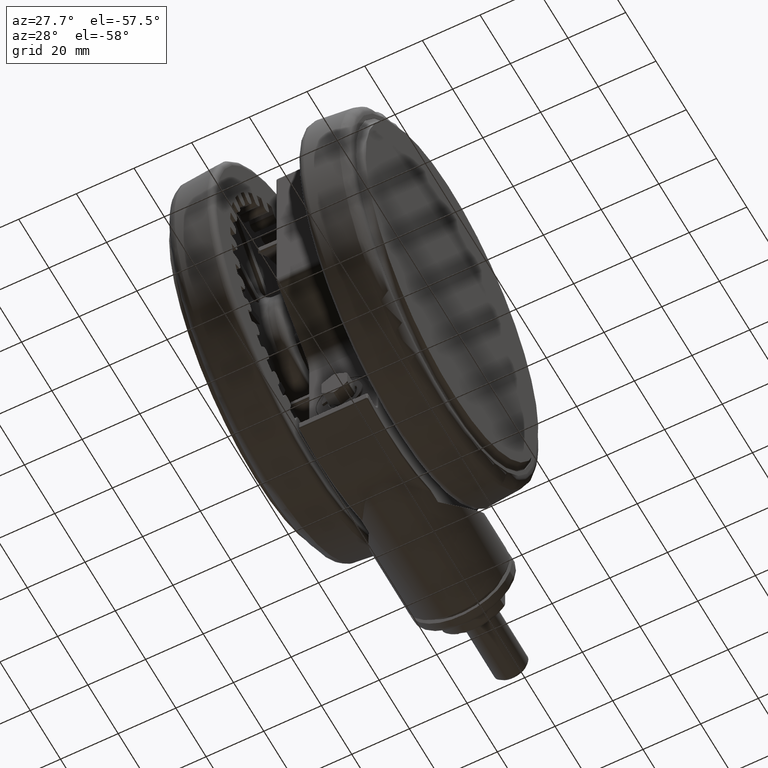
[diagram: clean part render]
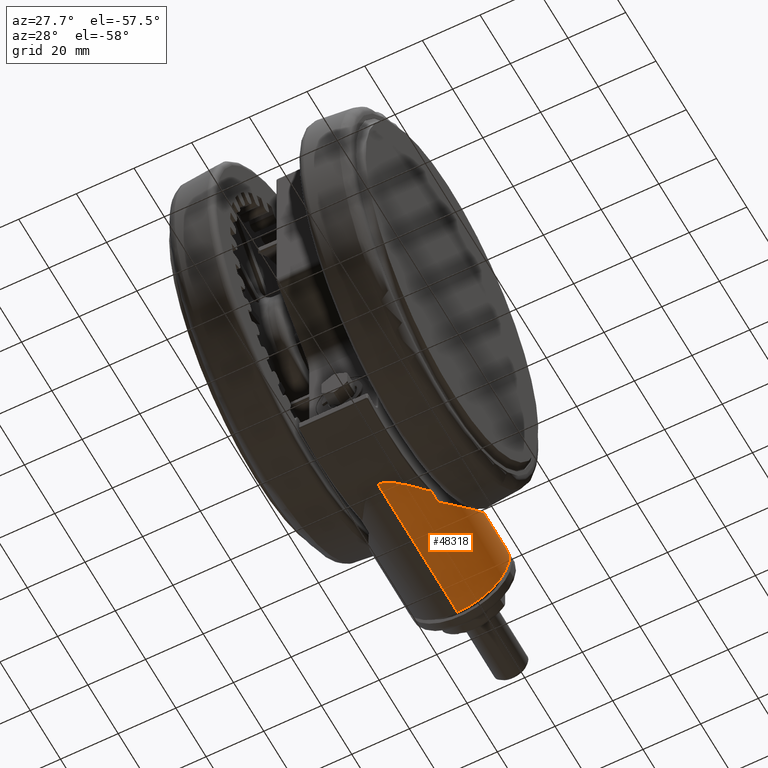
[diagram: same view with one face highlighted and labeled with its STEP entity id]
A machine part, auxiliary view. The second image highlights one B-rep face of the part: STEP entity #48318.
In plain terms, the highlighted cylindrical surface (partial cylindrical patch) has radius 18 mm, axis along (0, -1, 0).
Its self-contained STEP definition (entity closure, byte-faithful):
#78 = DIRECTION ( 'NONE',  ( -0.05055745222233949700, -0.9987211542892169300, 0.0000000000000000000 ) ) ;
#140 = CARTESIAN_POINT ( 'NONE',  ( 44.14669948608721500, 50.40088120817844000, -16.43206322040248000 ) ) ;
#389 = CARTESIAN_POINT ( 'NONE',  ( 58.20468124980212800, 33.19386720055675300, -20.20223399500327900 ) ) ;
#712 = B_SPLINE_CURVE_WITH_KNOTS ( 'NONE', 3,
 ( #41897, #7928, #58980, #25003, #64667, #30708, #70390, #36444, #2520, #42129, #8186, #47855, #13873, #53536 ),
 .UNSPECIFIED., .F., .F.,
 ( 4, 2, 2, 2, 2, 2, 4 ),
 ( 0.0000000000000000000, 0.0003000058049721905700, 0.0004500087074582788100, 0.0006000116099443670500, 0.0007500145124304551800, 0.0009000174149165435300, 0.001200023219888709600 ),
 .UNSPECIFIED. ) ;
#2285 = CIRCLE ( 'NONE', #30308, 17.99999999999999300 ) ;
#2520 = CARTESIAN_POINT ( 'NONE',  ( 59.93774761731221200, 24.91412802615935000, -22.31011401550836800 ) ) ;
#4741 = CARTESIAN_POINT ( 'NONE',  ( 30.51502983712470000, 66.07683388416536700, -31.89133214798207300 ) ) ;
#4989 = CARTESIAN_POINT ( 'NONE',  ( 32.45790099931790000, 61.25055330990330300, -25.25708756687142700 ) ) ;
#5000 = CARTESIAN_POINT ( 'NONE',  ( 34.88047826945315700, 67.32262713935560300, -22.27142857142859400 ) ) ;
#5229 = CARTESIAN_POINT ( 'NONE',  ( 34.08885830141999000, 56.35140521876679300, -22.54204867419069900 ) ) ;
#5414 = CARTESIAN_POINT ( 'NONE',  ( 62.73348931903807800, 17.02483586829037800, -27.60073806119338600 ) ) ;
#5577 = CARTESIAN_POINT ( 'NONE',  ( 36.59040971736735800, 56.13018517806715800, -20.06248844090831100 ) ) ;
#5819 = CARTESIAN_POINT ( 'NONE',  ( 45.09571121983064000, 49.55357112077411600, -16.26687793784571000 ) ) ;
#6066 = CARTESIAN_POINT ( 'NONE',  ( 59.31736890908811000, 31.16152881902164000, -21.29889750712607500 ) ) ;
#6380 = DIRECTION ( 'NONE',  ( -0.05055745222233949700, -0.9987211542892169300, 0.0000000000000000000 ) ) ;
#7928 = CARTESIAN_POINT ( 'NONE',  ( 59.72929033548905400, 24.45728313798082700, -22.10000000000000900 ) ) ;
#8186 = CARTESIAN_POINT ( 'NONE',  ( 60.02456538263079000, 24.85083112791188500, -22.41467223494362700 ) ) ;
#10133 = ORIENTED_EDGE ( 'NONE', *, *, #67243, .T. ) ;
#10167 = B_SPLINE_CURVE_WITH_KNOTS ( 'NONE', 3,
 ( #39508, #67772, #16714, #5577, #45211, #11281, #50966, #16973, #56647, #22656, #62302, #28321, #68011, #34044, #140, #39762, #5819, #45470, #11520, #51192, #17212, #56891, #22901, #62544, #28582, #68254, #34287, #389, #40004, #6066, #45705, #11771 ),
 .UNSPECIFIED., .F., .F.,
 ( 4, 2, 2, 2, 2, 2, 2, 2, 2, 2, 2, 2, 2, 2, 2, 4 ),
 ( -0.0002386625665848559900, 0.002306546216419894600, 0.004851754999424645300, 0.006124359390927029700, 0.007396963782429415900, 0.009942172565434163900, 0.01248738134843891200, 0.01375998573994128600, 0.01503259013144365800, 0.02012300769745314200, 0.02266821648045789400, 0.02521342526346264200, 0.03030384282947212700, 0.03539426039548161700, 0.03793946917848636100, 0.04048467796149110600 ),
 .UNSPECIFIED. ) ;
#10187 = ORIENTED_EDGE ( 'NONE', *, *, #12396, .T. ) ;
#10298 = VECTOR ( 'NONE', #15710, 1000.000000000000100 ) ;
#10431 = CARTESIAN_POINT ( 'NONE',  ( 30.61250370918296700, 65.84271139054567400, -31.11424504967487100 ) ) ;
#10645 = FACE_OUTER_BOUND ( 'NONE', #57889, .T. ) ;
#10669 = CARTESIAN_POINT ( 'NONE',  ( 32.79271872454821600, 60.34144584278084300, -24.61455989449467200 ) ) ;
#10860 = CARTESIAN_POINT ( 'NONE',  ( 63.72835195577810900, 12.79441897862009400, -33.73296376204380900 ) ) ;
#11105 = CARTESIAN_POINT ( 'NONE',  ( 61.90592499908910200, 19.85430267694305700, -25.47374654593914300 ) ) ;
#11176 = LINE ( 'NONE', #42779, #54630 ) ;
#11281 = CARTESIAN_POINT ( 'NONE',  ( 38.09567291457500500, 55.11674801192608400, -18.95786812325592400 ) ) ;
#11431 = ORIENTED_EDGE ( 'NONE', *, *, #34251, .T. ) ;
#11520 = CARTESIAN_POINT ( 'NONE',  ( 47.85484969581113300, 46.92319790031873300, -16.06348650702902200 ) ) ;
#11695 = EDGE_CURVE ( 'NONE', #39783, #25799, #17771, .T. ) ;
#11771 = CARTESIAN_POINT ( 'NONE',  ( 60.00051325005273400, 29.81507017818748700, -22.10000000000001200 ) ) ;
#11814 = AXIS2_PLACEMENT_3D ( 'NONE', #24170, #18454, #63827 ) ;
#11950 = CARTESIAN_POINT ( 'NONE',  ( 30.42865664303911200, 67.04734785880820900, -34.10000000000002300 ) ) ;
#12396 = EDGE_CURVE ( 'NONE', #54913, #27442, #11176, .T. ) ;
#13709 = ORIENTED_EDGE ( 'NONE', *, *, #70308, .T. ) ;
#13873 = CARTESIAN_POINT ( 'NONE',  ( 60.13402875898784600, 24.67603114804268600, -22.55446851132577300 ) ) ;
#15710 = DIRECTION ( 'NONE',  ( -0.05055745222233949700, -0.9987211542892169300, 0.0000000000000000000 ) ) ;
#16116 = CARTESIAN_POINT ( 'NONE',  ( 30.77614859069719700, 65.45021851770759700, -30.19591483090587400 ) ) ;
#16354 = CARTESIAN_POINT ( 'NONE',  ( 33.04944884259440100, 59.61322262424958800, -24.16006867629340200 ) ) ;
#16547 = CARTESIAN_POINT ( 'NONE',  ( 63.68440747458662100, 13.01168646963638200, -32.65005110094053700 ) ) ;
#16714 = CARTESIAN_POINT ( 'NONE',  ( 35.45193216510153900, 56.85610149465018300, -21.09378444231233400 ) ) ;
#16793 = CARTESIAN_POINT ( 'NONE',  ( 60.65898094609669000, 23.39174740267126400, -23.26394934674032200 ) ) ;
#16973 = CARTESIAN_POINT ( 'NONE',  ( 39.03246791779054800, 54.45745312618885900, -18.37687606074000300 ) ) ;
#17212 = CARTESIAN_POINT ( 'NONE',  ( 50.15498108677556400, 44.43196165805209600, -16.31612010301205700 ) ) ;
#17497 = ORIENTED_EDGE ( 'NONE', *, *, #52545, .T. ) ;
#17771 = B_SPLINE_CURVE_WITH_KNOTS ( 'NONE', 3,
 ( #49858, #32693, #27234, #66912, #32939, #72627, #38658, #4741, #44369, #10431, #50106, #16116, #55798, #21802, #61453, #27478, #67161, #33183, #72851, #38912, #4989, #44617, #10669, #50357, #16354, #56039, #22050, #61693, #27736, #67411, #33423, #73096, #39156, #5229, #44854 ),
 .UNSPECIFIED., .F., .F.,
 ( 4, 2, 1, 2, 2, 1, 2, 2, 1, 2, 2, 2, 2, 2, 2, 2, 1, 1, 2, 4 ),
 ( 0.4997011025787161400, 0.5149259359215335700, 0.5301507692643509000, 0.5606004359499849900, 0.5758252692928023100, 0.5910501026356195200, 0.6214997693212548400, 0.6367246026640726000, 0.6519494360068902600, 0.6823991026925249100, 0.7432984360637934200, 0.8041977694350619400, 0.8346474361206963600, 0.8650971028063310100, 0.8727095194777400000, 0.8765157278134445600, 0.8803219361491492200, 0.8955467694919681000, 0.9259964361776056300, 0.9868957695488810300 ),
 .UNSPECIFIED. ) ;
#18454 = DIRECTION ( 'NONE',  ( -0.05055745222233949700, -0.9987211542892170400, 0.0000000000000000000 ) ) ;
#18857 = VERTEX_POINT ( 'NONE', #46875 ) ;
#19224 = EDGE_CURVE ( 'NONE', #58566, #18857, #68806, .T. ) ;
#20498 = LINE ( 'NONE', #5000, #62174 ) ;
#21802 = CARTESIAN_POINT ( 'NONE',  ( 30.86747597106784000, 65.23062276913641700, -29.76120331054965700 ) ) ;
#22050 = CARTESIAN_POINT ( 'NONE',  ( 33.12118085617735400, 59.40530525637161200, -24.03727319394216600 ) ) ;
#22239 = CARTESIAN_POINT ( 'NONE',  ( 63.59521371804634500, 13.44146514395031900, -31.64063744673932600 ) ) ;
#22656 = CARTESIAN_POINT ( 'NONE',  ( 40.30484175776911100, 53.52702744680085100, -17.69880685321983500 ) ) ;
#22720 = ORIENTED_EDGE ( 'NONE', *, *, #67183, .T. ) ;
#22901 = CARTESIAN_POINT ( 'NONE',  ( 51.80270546942504200, 42.49909936042605100, -16.68494045952805700 ) ) ;
#23929 = CYLINDRICAL_SURFACE ( 'NONE', #11814, 18.00000000000000000 ) ;
#24170 = CARTESIAN_POINT ( 'NONE',  ( 48.43091614635618900, 66.63667429595071200, -34.10000000000001600 ) ) ;
#25003 = CARTESIAN_POINT ( 'NONE',  ( 59.76816209047621700, 24.70268384109408200, -22.12959349303896800 ) ) ;
#25799 = VERTEX_POINT ( 'NONE', #26999 ) ;
#26999 = CARTESIAN_POINT ( 'NONE',  ( 34.28797555004973700, 55.61847226194731800, -22.27143769148011300 ) ) ;
#27077 = CARTESIAN_POINT ( 'NONE',  ( 66.40789692356209200, 65.72664015594860100, -34.10000000000001600 ) ) ;
#27234 = CARTESIAN_POINT ( 'NONE',  ( 30.39624465938997100, 66.36721340055277100, -33.78829076249908800 ) ) ;
#27442 = VERTEX_POINT ( 'NONE', #56308 ) ;
#27478 = CARTESIAN_POINT ( 'NONE',  ( 31.07686011391467300, 64.72522153362402300, -28.90054944847633700 ) ) ;
#27736 = CARTESIAN_POINT ( 'NONE',  ( 33.16230185567109600, 59.28516581692573300, -23.96771043783830300 ) ) ;
#27918 = CARTESIAN_POINT ( 'NONE',  ( 63.46999137052322500, 14.02148358809706800, -30.70626517168164700 ) ) ;
#28233 = B_SPLINE_CURVE_WITH_KNOTS ( 'NONE', 3,
 ( #44806, #10860, #50547, #16547, #56235, #22239, #61878, #27918, #67614, #33623, #73290, #39342, #5414, #45041, #11105, #50799, #16793, #56472 ),
 .UNSPECIFIED., .F., .F.,
 ( 4, 2, 2, 2, 2, 2, 2, 2, 4 ),
 ( 0.01856654758789083600, 0.01965893162401120500, 0.02075131566013157700, 0.02184369969625194600, 0.02293608373237231900, 0.02512085180461304600, 0.02730561987685377300, 0.03167515602133523500, 0.03604469216581670400 ),
 .UNSPECIFIED. ) ;
#28321 = CARTESIAN_POINT ( 'NONE',  ( 42.22426262899707400, 52.02670626982271800, -16.93353194370890700 ) ) ;
#28582 = CARTESIAN_POINT ( 'NONE',  ( 54.33635481753875500, 39.23214764587353200, -17.60257670483941800 ) ) ;
#29825 = LINE ( 'NONE', #33738, #73284 ) ;
#30308 = AXIS2_PLACEMENT_3D ( 'NONE', #31424, #71119, #37163 ) ;
#30708 = CARTESIAN_POINT ( 'NONE',  ( 59.81640498803748300, 24.83722714176157000, -22.17620667785482500 ) ) ;
#31424 = CARTESIAN_POINT ( 'NONE',  ( 48.40563742024502100, 66.13731371880609800, -34.10000000000001600 ) ) ;
#32693 = CARTESIAN_POINT ( 'NONE',  ( 30.39445124485613500, 66.37164816955024100, -33.94649778834990200 ) ) ;
#32939 = CARTESIAN_POINT ( 'NONE',  ( 30.41991885408612000, 66.30831619192083800, -33.00231471533453500 ) ) ;
#32952 = DIRECTION ( 'NONE',  ( 0.05055745222233949700, 0.9987211542892169300, -0.0000000000000000000 ) ) ;
#33183 = CARTESIAN_POINT ( 'NONE',  ( 31.50107299475343600, 63.68876888769367600, -27.50687675431564500 ) ) ;
#33423 = CARTESIAN_POINT ( 'NONE',  ( 33.40437314908980000, 58.56714683440936400, -23.56724930811662200 ) ) ;
#33623 = CARTESIAN_POINT ( 'NONE',  ( 63.26584950446792300, 14.92148890183957000, -29.57144694429217000 ) ) ;
#33738 = CARTESIAN_POINT ( 'NONE',  ( 30.45393536915028300, 67.54670843595282300, -34.10000000000001600 ) ) ;
#34044 = CARTESIAN_POINT ( 'NONE',  ( 43.82597921565566400, 50.67998444100360400, -16.50068771614700600 ) ) ;
#34251 = EDGE_CURVE ( 'NONE', #43433, #39783, #29825, .T. ) ;
#34287 = CARTESIAN_POINT ( 'NONE',  ( 57.01264417264387400, 35.22824663420757900, -19.20065556778598600 ) ) ;
#36444 = CARTESIAN_POINT ( 'NONE',  ( 59.90234879780679500, 24.91776942414160300, -22.26924938124130200 ) ) ;
#37024 = EDGE_CURVE ( 'NONE', #18857, #57998, #28233, .T. ) ;
#37163 = DIRECTION ( 'NONE',  ( 0.9987211542892170400, -0.05055745222233952500, 0.0000000000000000000 ) ) ;
#38658 = CARTESIAN_POINT ( 'NONE',  ( 30.49859701246722200, 66.11645048846114000, -32.04546503694285100 ) ) ;
#38912 = CARTESIAN_POINT ( 'NONE',  ( 32.12636784715738300, 62.12047182332811700, -25.94535852095509700 ) ) ;
#39156 = CARTESIAN_POINT ( 'NONE',  ( 33.88168412185029900, 57.05611160106551700, -22.83653937607277500 ) ) ;
#39342 = CARTESIAN_POINT ( 'NONE',  ( 62.87974059298261400, 16.47522343622394600, -28.06585462911400000 ) ) ;
#39508 = CARTESIAN_POINT ( 'NONE',  ( 34.38346741677629800, 57.50458389032547000, -22.27142857142859400 ) ) ;
#39762 = CARTESIAN_POINT ( 'NONE',  ( 44.78126889329213600, 49.83791587117655600, -16.31525281705141600 ) ) ;
#39783 = VERTEX_POINT ( 'NONE', #46178 ) ;
#40004 = CARTESIAN_POINT ( 'NONE',  ( 58.58666101132308800, 32.51452420349841100, -20.55560373495777800 ) ) ;
#41897 = CARTESIAN_POINT ( 'NONE',  ( 59.72421825664727600, 24.35708836524514400, -22.10000000000001200 ) ) ;
#42129 = CARTESIAN_POINT ( 'NONE',  ( 59.99813312084519600, 24.87934087570791400, -22.38210131451155500 ) ) ;
#42779 = CARTESIAN_POINT ( 'NONE',  ( 61.83016649570262000, 65.95837489632062000, -22.10000000000001200 ) ) ;
#43429 = ORIENTED_EDGE ( 'NONE', *, *, #19224, .F. ) ;
#43433 = VERTEX_POINT ( 'NONE', #11950 ) ;
#44369 = CARTESIAN_POINT ( 'NONE',  ( 30.55185928117825300, 65.98825710082682900, -31.57993573142853800 ) ) ;
#44617 = CARTESIAN_POINT ( 'NONE',  ( 32.56823519464138200, 60.95548588381991800, -25.03920003410142700 ) ) ;
#44806 = CARTESIAN_POINT ( 'NONE',  ( 63.72835195577809500, 12.79441897862008100, -34.10000000000001600 ) ) ;
#44854 = CARTESIAN_POINT ( 'NONE',  ( 34.28797555004973700, 55.61847226194731800, -22.27143769148011300 ) ) ;
#45041 = CARTESIAN_POINT ( 'NONE',  ( 62.26329239204289900, 18.69826982475467100, -26.27474743994084600 ) ) ;
#45211 = CARTESIAN_POINT ( 'NONE',  ( 37.18142141336383600, 55.74124798189948400, -19.59403578960878200 ) ) ;
#45470 = CARTESIAN_POINT ( 'NONE',  ( 46.65374288668216700, 48.11758072229928000, -16.07172596920970500 ) ) ;
#45705 = CARTESIAN_POINT ( 'NONE',  ( 59.66670434338809800, 30.48683467874429100, -21.68929611944488700 ) ) ;
#46178 = CARTESIAN_POINT ( 'NONE',  ( 30.39444420070181600, 66.37150897202828000, -34.09999999999893600 ) ) ;
#46775 = CARTESIAN_POINT ( 'NONE',  ( 66.38261819745092400, 65.22727957880397300, -34.10000000000001600 ) ) ;
#46875 = CARTESIAN_POINT ( 'NONE',  ( 63.72835195577809500, 12.79441897862008100, -34.10000000000001600 ) ) ;
#47855 = CARTESIAN_POINT ( 'NONE',  ( 60.09630850528505900, 24.75430237211479300, -22.50474092721808400 ) ) ;
#48318 = ADVANCED_FACE ( 'NONE', ( #10645 ), #23929, .T. ) ;
#49858 = CARTESIAN_POINT ( 'NONE',  ( 30.39444420070181600, 66.37150897202828000, -34.09999999999893600 ) ) ;
#50106 = CARTESIAN_POINT ( 'NONE',  ( 30.68914408912433000, 65.65913444358196200, -30.65322690052894200 ) ) ;
#50357 = CARTESIAN_POINT ( 'NONE',  ( 32.90636764358396200, 60.02372137177181300, -24.40892554080546300 ) ) ;
#50547 = CARTESIAN_POINT ( 'NONE',  ( 63.71939700904700700, 12.83924394100959400, -33.36967978266286400 ) ) ;
#50799 = CARTESIAN_POINT ( 'NONE',  ( 61.10383719510696900, 22.20040460924932500, -23.96735802317482100 ) ) ;
#50966 = CARTESIAN_POINT ( 'NONE',  ( 38.40506259985205200, 54.90172055087022300, -18.75692733139952800 ) ) ;
#51192 = CARTESIAN_POINT ( 'NONE',  ( 49.58846270149069100, 45.06331825390975600, -16.23032165833317800 ) ) ;
#52545 = EDGE_CURVE ( 'NONE', #57151, #54913, #10167, .T. ) ;
#53536 = CARTESIAN_POINT ( 'NONE',  ( 60.16771797703120900, 24.59361123211540700, -22.60000000000001200 ) ) ;
#54630 = VECTOR ( 'NONE', #6380, 1000.000000000000100 ) ;
#54913 = VERTEX_POINT ( 'NONE', #56584 ) ;
#55798 = CARTESIAN_POINT ( 'NONE',  ( 30.80534922965537300, 65.38004398445390600, -30.05173547107850500 ) ) ;
#56039 = CARTESIAN_POINT ( 'NONE',  ( 33.07811626452411200, 59.53045570771449500, -24.11070645386911700 ) ) ;
#56235 = CARTESIAN_POINT ( 'NONE',  ( 63.65881431417091800, 13.13695372504318800, -32.30348643606617300 ) ) ;
#56308 = CARTESIAN_POINT ( 'NONE',  ( 59.72421825664727600, 24.35708836524514400, -22.10000000000001200 ) ) ;
#56472 = CARTESIAN_POINT ( 'NONE',  ( 60.16771797703120900, 24.59361123211540700, -22.60000000000001200 ) ) ;
#56584 = CARTESIAN_POINT ( 'NONE',  ( 60.00051325005273400, 29.81507017818748700, -22.10000000000001200 ) ) ;
#56647 = CARTESIAN_POINT ( 'NONE',  ( 39.35075811199852300, 54.22797774316619300, -18.19772246325272000 ) ) ;
#56891 = CARTESIAN_POINT ( 'NONE',  ( 51.26516005645469700, 43.14631744405896500, -16.54405435237461600 ) ) ;
#57151 = VERTEX_POINT ( 'NONE', #61870 ) ;
#57889 = EDGE_LOOP ( 'NONE', ( #10133, #11431, #70653, #13709, #17497, #10187, #22720, #73005, #43429 ) ) ;
#57998 = VERTEX_POINT ( 'NONE', #64955 ) ;
#58566 = VERTEX_POINT ( 'NONE', #46775 ) ;
#58980 = CARTESIAN_POINT ( 'NONE',  ( 59.73853605751077100, 24.55745679809184200, -22.10464243000277700 ) ) ;
#61453 = CARTESIAN_POINT ( 'NONE',  ( 30.96532304896608400, 64.99506058418940300, -29.32752157714127600 ) ) ;
#61693 = CARTESIAN_POINT ( 'NONE',  ( 33.13537455454189000, 59.36391634113832800, -24.01319280974176400 ) ) ;
#61870 = CARTESIAN_POINT ( 'NONE',  ( 34.38346741677629800, 57.50458389032547000, -22.27142857142859400 ) ) ;
#61878 = CARTESIAN_POINT ( 'NONE',  ( 63.55694750666905400, 13.62190259178520300, -31.32136379566924900 ) ) ;
#62174 = VECTOR ( 'NONE', #32952, 1000.000000000000100 ) ;
#62302 = CARTESIAN_POINT ( 'NONE',  ( 40.94400497799917100, 53.04012609534886700, -17.41477056196527000 ) ) ;
#62544 = CARTESIAN_POINT ( 'NONE',  ( 53.36343037353767500, 40.54774050876391600, -17.17880678705226300 ) ) ;
#63827 = DIRECTION ( 'NONE',  ( 0.9987211542892170400, -0.05055745222233951100, 0.0000000000000000000 ) ) ;
#64667 = CARTESIAN_POINT ( 'NONE',  ( 59.78074856295892700, 24.75042938141168800, -22.14099106300472600 ) ) ;
#64955 = CARTESIAN_POINT ( 'NONE',  ( 60.16771797703120900, 24.59361123211540700, -22.60000000000001200 ) ) ;
#66912 = CARTESIAN_POINT ( 'NONE',  ( 30.40350903429624600, 66.34915907799863500, -33.47461518350967700 ) ) ;
#67161 = CARTESIAN_POINT ( 'NONE',  ( 31.31740549751988600, 64.13988053471146600, -28.05645423255818100 ) ) ;
#67183 = EDGE_CURVE ( 'NONE', #27442, #57998, #712, .T. ) ;
#67243 = EDGE_CURVE ( 'NONE', #58566, #43433, #2285, .T. ) ;
#67411 = CARTESIAN_POINT ( 'NONE',  ( 33.22960806885035400, 59.08773119079627600, -23.85454115242086800 ) ) ;
#67614 = CARTESIAN_POINT ( 'NONE',  ( 63.42190825567129100, 14.23784356395451700, -30.41431160355396900 ) ) ;
#67772 = CARTESIAN_POINT ( 'NONE',  ( 34.90328657392057500, 57.19377066739399100, -21.65791573482211200 ) ) ;
#68011 = CARTESIAN_POINT ( 'NONE',  ( 42.86537194259671700, 51.50018443489926800, -16.73637536629623300 ) ) ;
#68254 = CARTESIAN_POINT ( 'NONE',  ( 56.16100417710046600, 36.57242777810618900, -18.61349229904090300 ) ) ;
#68806 = LINE ( 'NONE', #27077, #10298 ) ;
#70308 = EDGE_CURVE ( 'NONE', #25799, #57151, #20498, .T. ) ;
#70390 = CARTESIAN_POINT ( 'NONE',  ( 59.84069497037796700, 24.87740810610924000, -22.20132783237363900 ) ) ;
#70653 = ORIENTED_EDGE ( 'NONE', *, *, #11695, .T. ) ;
#71119 = DIRECTION ( 'NONE',  ( -0.05055745222233949700, -0.9987211542892170400, 0.0000000000000000000 ) ) ;
#72627 = CARTESIAN_POINT ( 'NONE',  ( 30.45331344924963400, 66.22616657207240100, -32.52515002317665700 ) ) ;
#72851 = CARTESIAN_POINT ( 'NONE',  ( 31.91059899040140400, 62.66500055369567000, -26.43834774381417700 ) ) ;
#73005 = ORIENTED_EDGE ( 'NONE', *, *, #37024, .F. ) ;
#73096 = CARTESIAN_POINT ( 'NONE',  ( 33.56453138779862400, 58.07056927899810700, -23.31719462972142100 ) ) ;
#73284 = VECTOR ( 'NONE', #78, 1000.000000000000100 ) ;
#73290 = CARTESIAN_POINT ( 'NONE',  ( 63.14617161167287700, 15.42257355642852100, -29.05283298260254200 ) ) ;